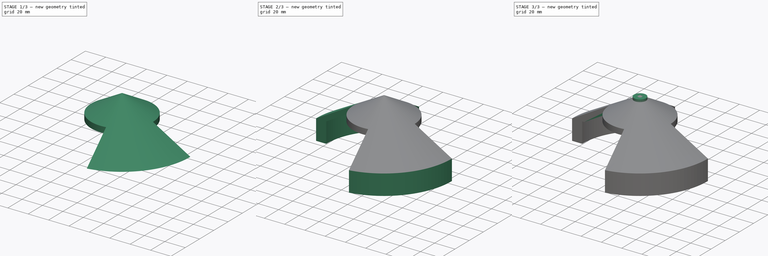
[diagram: build sequence overview — one tinted view per stage of 3, left to right]
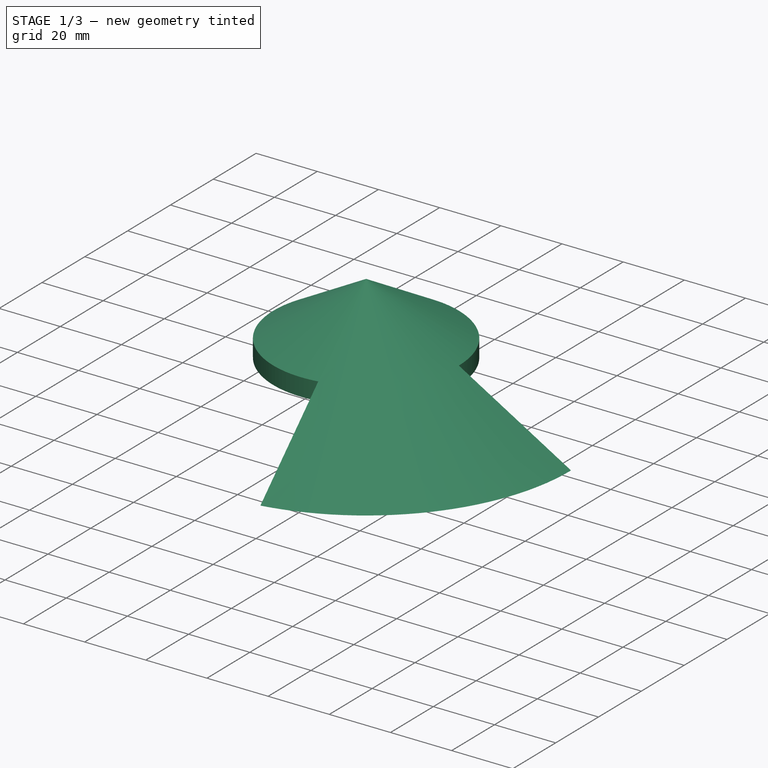
[diagram: stage 1 of 3 — iso view after this stage's code; geometry added in this stage tinted green]
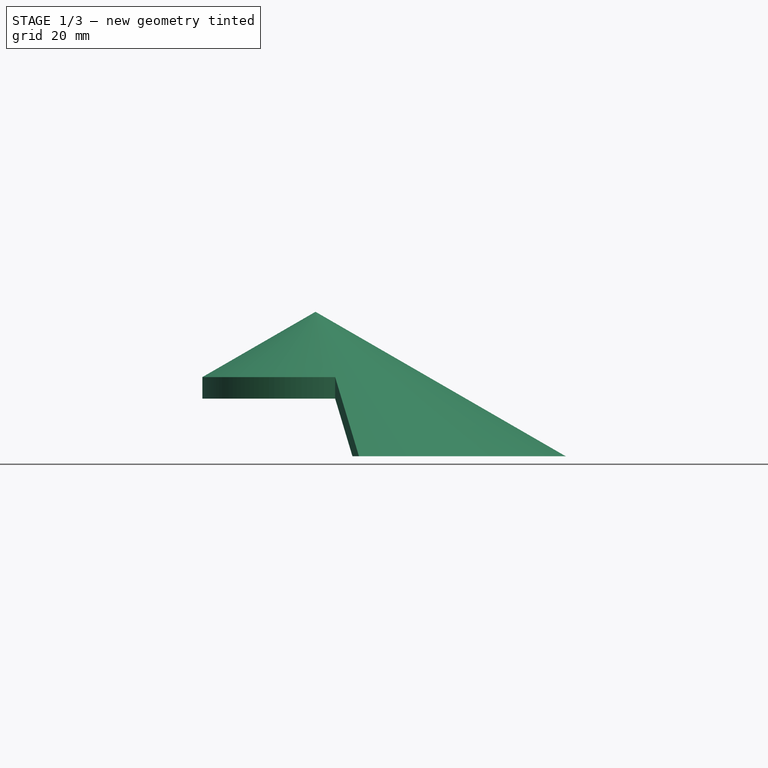
[diagram: stage 1 of 3 — front view after this stage's code; geometry added in this stage tinted green]
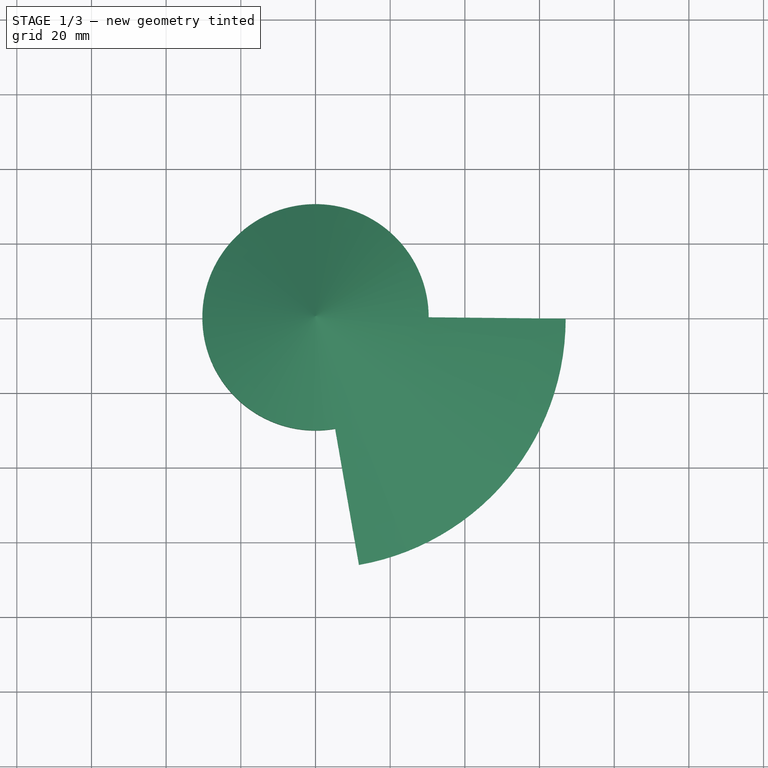
[diagram: stage 1 of 3 — top view after this stage's code; geometry added in this stage tinted green]
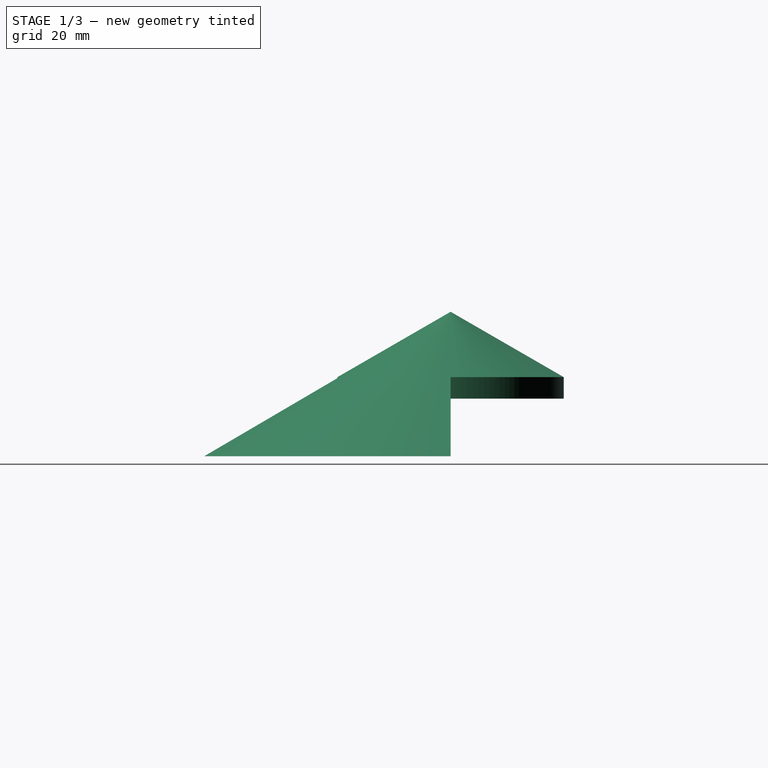
[diagram: stage 1 of 3 — right view after this stage's code; geometry added in this stage tinted green]
FCSTD DOCUMENT  (FreeCAD 1.1R39757 (Git))
Label: Чехол для бура
License: All rights reserved
LicenseURL: https://en.wikipedia.org/wiki/All_rights_reserved
objects: Sketcher::SketchObject×4, PartDesign::Revolution×2, PartDesign::PolarPattern×2, PartDesign::Pad×2, PartDesign::SubShapeBinder×1, App::Point×1, PartDesign::Pocket×1, PartDesign::Body×1, Measure::MeasureLength×1, App::DocumentObjectGroup×1
note: 29 computed .brp shape members not serialized (recipe doc carries the construction recipe); baked Part::Feature solids carry a one-line shape summary decoded from their .brp

FEATURE [PartDesign::SubShapeBinder] Binder
  BindCopyOnChange = 0
  BindMode = 0
  ClaimChildren = false
  Context = -> Body [Binder.]
  Fuse = false
  MakeFace = true
  OffsetFill = false
  OffsetIntersection = false
  OffsetJoinType = 0
  OffsetOpenResult = false
  PartialLoad = false
  Refine = true
  Relative = true
  Support = -> [PolarPattern[Face1,Face18]]
  _Version = 2
FEATURE [App::Point] Origin001
  Role = Origin
FEATURE [Sketcher::SketchObject] Sketch
  ArcFitTolerance = 1e-06
  AttachmentSupport = -> [XZ_Plane]
  ExternalTypes = [0]
  FullyConstrained = false
  MakeInternals = false
  MapMode = 5
  Placement = pos=(0,0,0) rot=(1,0,0;1.5708rad)
  sketch-geometry (5):
    g0: LineSegment StartX=57 StartY=0 StartZ=0 EndX=67 EndY=0 EndZ=0
    g1: LineSegment StartX=0 StartY=32.909 StartZ=0 EndX=57 EndY=0 EndZ=0
    g2: LineSegment StartX=67 StartY=0 StartZ=0 EndX=0 EndY=38.6825 EndZ=0
    g3: LineSegment [constr] StartX=67 StartY=0 StartZ=0 EndX=67 EndY=-59.0907 EndZ=0
    g4: LineSegment StartX=0 StartY=32.909 StartZ=0 EndX=0 EndY=38.6825 EndZ=0
  constraints (15):
    c: PointOnObject(g0,g-1)
    c: PointOnObject(g0,g-1)
    c: Coincident(g1,g0)
    c: Coincident(g0,g2)
    c: Coincident(g3,g0)
    c: Vertical(g3)
    c: Angle(g2,g3) = 2.0944
    c: Parallel(g1,g2)
    c: DistanceX(g-1,g0) = 57
    c: Distance(g2,g1) = 5
    c: Coincident(g4,g1)
    c: Coincident(g4,g2)
    c: Vertical(g4)
    c: DistanceX(g0,g0) = 10
    c: PointOnObject(g2,g-2)
FEATURE [Sketcher::SketchObject] Sketch001
  ArcFitTolerance = 1e-06
  AttachmentSupport = -> [XZ_Plane]
  ExternalGeometry = -> [Sketch]
  ExternalTypes = [0,0,0]
  FullyConstrained = true
  MakeInternals = false
  MapMode = 5
  Placement = pos=(0,0,0) rot=(1,0,0;1.5708rad)
  sketch-geometry (3):
    g0: LineSegment StartX=0 StartY=32.909 StartZ=0 EndX=30.3109 EndY=15.409 EndZ=0
    g1: LineSegment StartX=30.3109 StartY=15.409 StartZ=0 EndX=30.3109 EndY=21.1825 EndZ=0
    g2: LineSegment StartX=30.3109 StartY=21.1825 StartZ=0 EndX=0 EndY=38.6825 EndZ=0
  constraints (8):
    c: Coincident(g-3,g0)
    c: Coincident(g0,g1)
    c: Vertical(g1)
    c: Coincident(g1,g2)
    c: Coincident(g2,g-3)
    c: PointOnObject(g1,g-4)
    c: PointOnObject(g0,g-5)
    c: Distance(g2,g2) = 35
FEATURE [PartDesign::Revolution] Revolution
  Angle = 360
  Angle2 = 60
  Axis = (0,2e-16,1)
  Base = (0,0,0)
  Midplane = true
  Placement = pos=(0,0,0) rot=(1,0,0;1.5708rad)
  Profile = -> Sketch001
  ReferenceAxis = -> Sketch001 [V_Axis]
  Refine = true
  Suppressed = false
  Type = 0
FEATURE [PartDesign::Revolution] Revolution001
  Angle = 80
  Angle2 = 60
  Axis = (0,2e-16,1)
  Base = (0,0,0)
  BaseFeature = -> Revolution
  Placement = pos=(0,0,0) rot=(1,0,0;1.5708rad)
  Profile = -> Sketch
  ReferenceAxis = -> Sketch [V_Axis]
  Refine = true
  Reversed = true
  Suppressed = false
  Type = 0
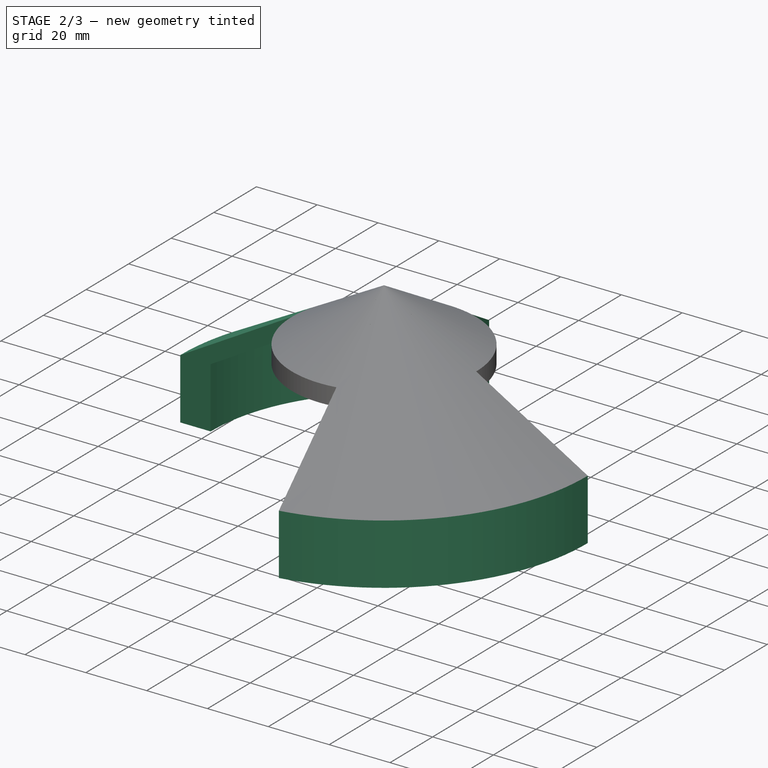
[diagram: stage 2 of 3 — iso view after this stage's code; geometry added in this stage tinted green]
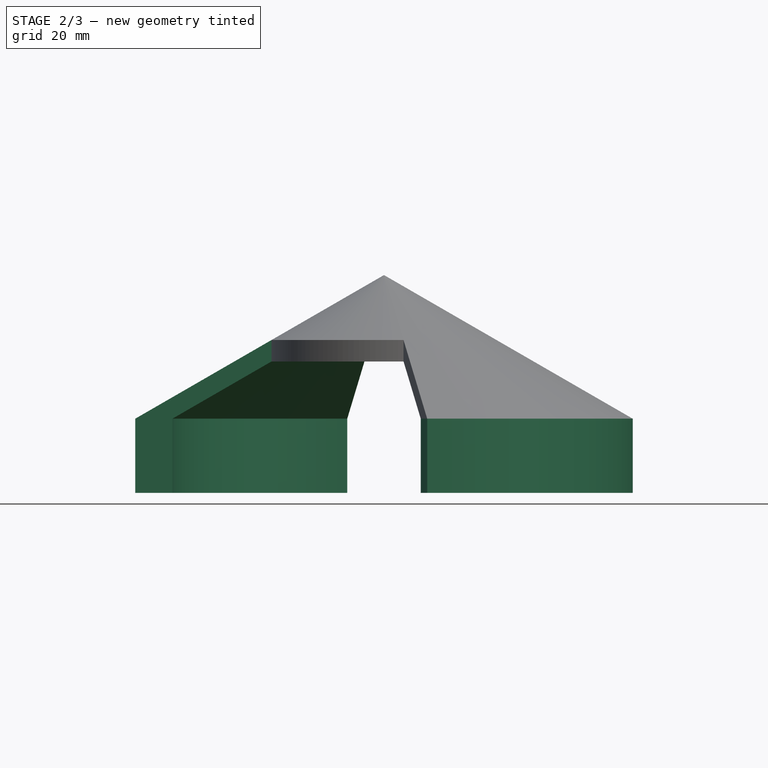
[diagram: stage 2 of 3 — front view after this stage's code; geometry added in this stage tinted green]
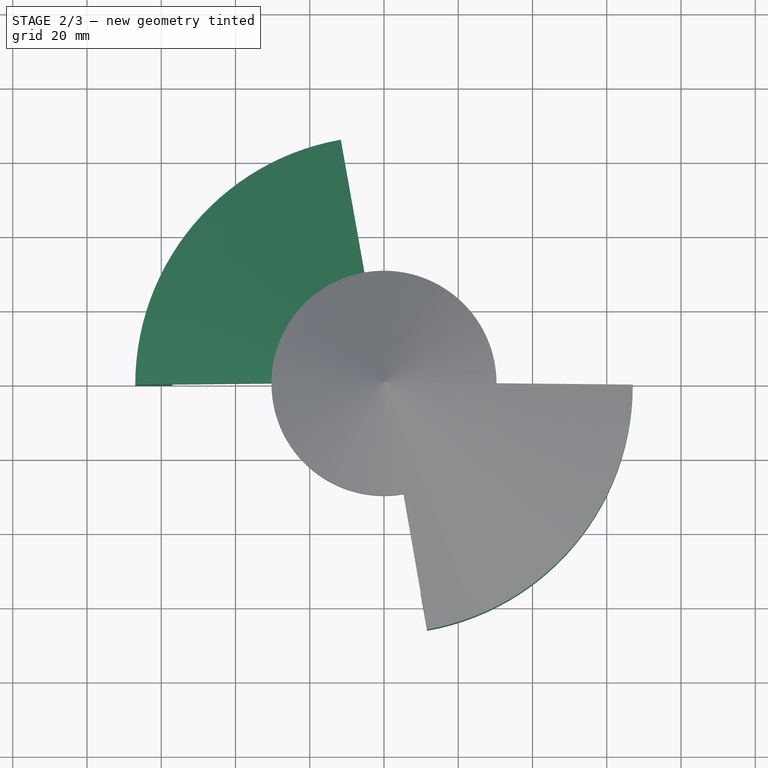
[diagram: stage 2 of 3 — top view after this stage's code; geometry added in this stage tinted green]
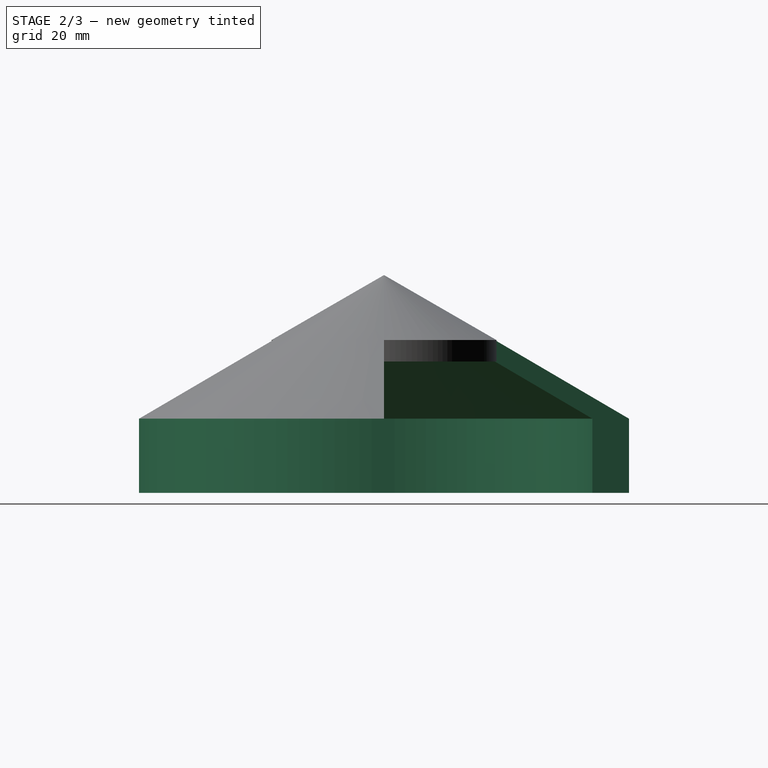
[diagram: stage 2 of 3 — right view after this stage's code; geometry added in this stage tinted green]
FEATURE [PartDesign::PolarPattern] PolarPattern
  Angle = 360
  Axis = -> Y_Axis
  BaseFeature = -> Revolution001
  Mode = 0
  Occurrences = 2
  Offset = 120
  Originals = -> [Revolution001]
  Placement = pos=(0,0,0) rot=(1,0,0;1.5708rad)
  Refine = true
  Suppressed = false
  TransformMode = 0
FEATURE [PartDesign::Pad] Pad
  BaseFeature = -> PolarPattern
  Direction = (0,-2e-16,-1)
  Length = 20
  Length2 = 10
  Placement = pos=(0,0,0) rot=(1,0,0;1.5708rad)
  Profile = -> PolarPattern [Face1,Face18]
  Refine = true
  Suppressed = false
  Type = 0
FEATURE [Sketcher::SketchObject] Sketch002
  ArcFitTolerance = 1e-06
  AttachmentOffset = pos=(0,0,0) rot=(0,-1,0;0.785398rad)
  AttachmentSupport = -> [XZ_Plane]
  ExternalGeometry = -> [Pad]
  ExternalTypes = [0]
  FullyConstrained = true
  MakeInternals = false
  MapMode = 5
  Placement = pos=(0,0,0) rot=(0.862856,-0.357407,-0.357407;1.71777rad)
  sketch-geometry (3):
    g0: LineSegment StartX=-67 StartY=-20 StartZ=0 EndX=-72 EndY=-12.8593 EndZ=0
    g1: LineSegment StartX=-72 StartY=-12.8593 StartZ=0 EndX=-67 EndY=-12.8593 EndZ=0
    g2: LineSegment StartX=-67 StartY=-20 StartZ=0 EndX=-67 EndY=-12.8593 EndZ=0
  constraints (9):
    c: PointOnObject(g0,g-3)
    c: Coincident(g0,g1)
    c: Coincident(g0,g2)
    c: Coincident(g2,g1)
    c: Vertical(g2)
    c: DistanceX(g0,g-3) = 5
    c: Horizontal(g1)
    c: Angle(g0,g1) = 0.959931
    c: DistanceX(g1,g1) = 5
FEATURE [PartDesign::Pad] Pad001
  BaseFeature = -> Pad
  Direction = (-0.707107,-0.707107,1e-16)
  Length = 4
  Length2 = 4
  Placement = pos=(0,0,0) rot=(1,0,0;1.5708rad)
  Profile = -> Sketch002
  ReferenceAxis = -> Sketch002 [N_Axis]
  Refine = true
  Suppressed = false
  Type = 4
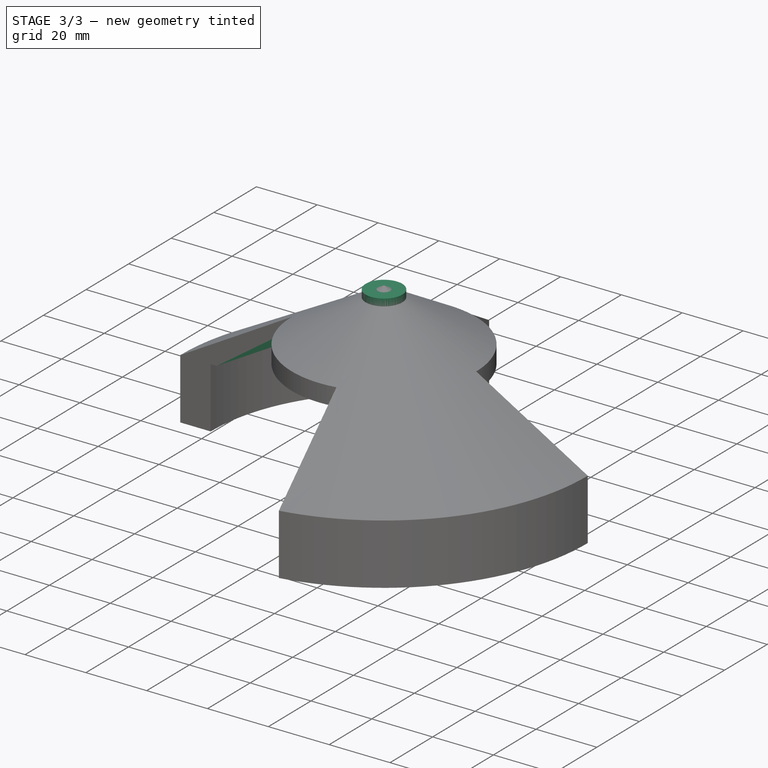
[diagram: stage 3 of 3 — iso view after this stage's code; geometry added in this stage tinted green]
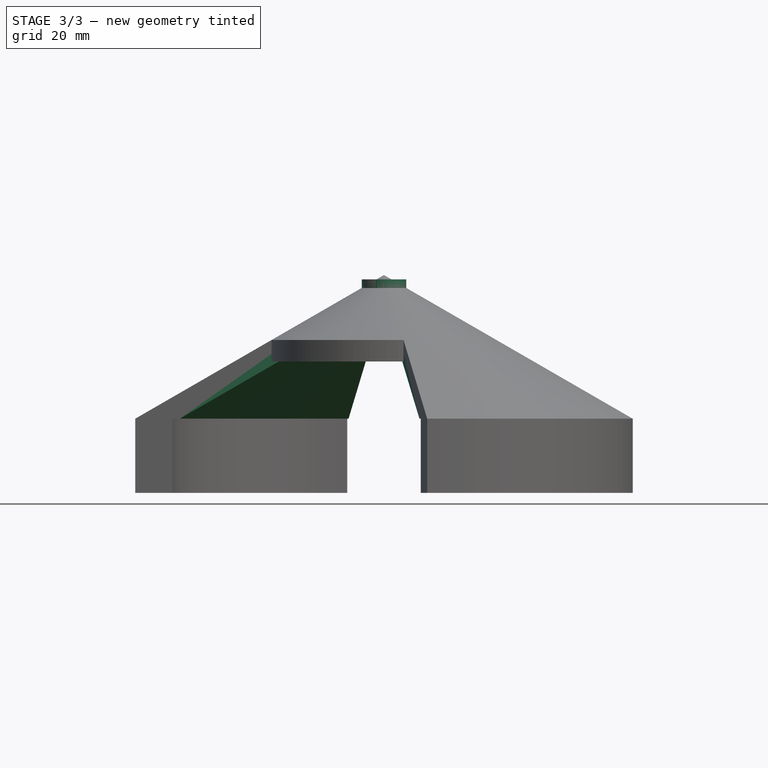
[diagram: stage 3 of 3 — front view after this stage's code; geometry added in this stage tinted green]
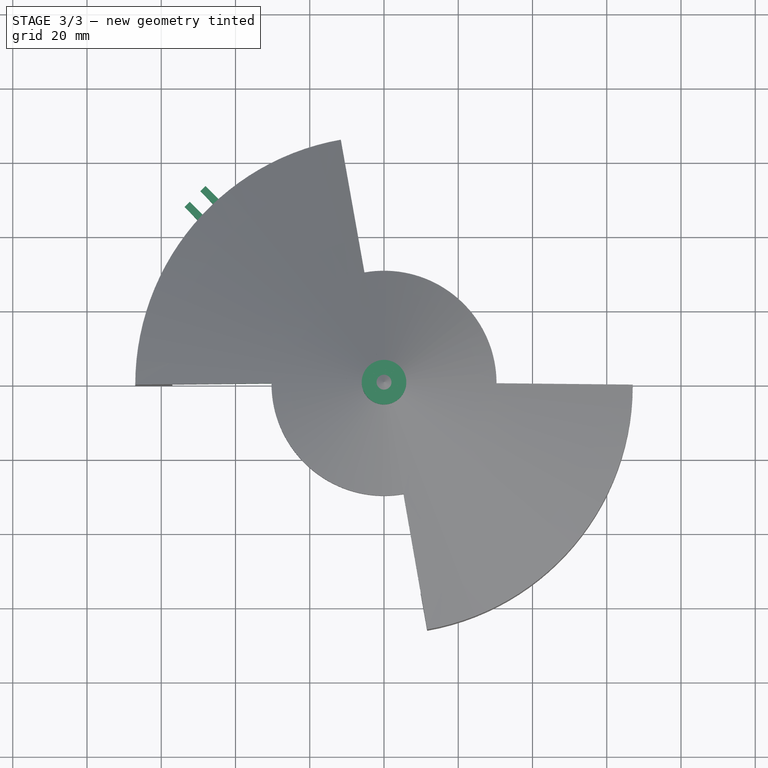
[diagram: stage 3 of 3 — top view after this stage's code; geometry added in this stage tinted green]
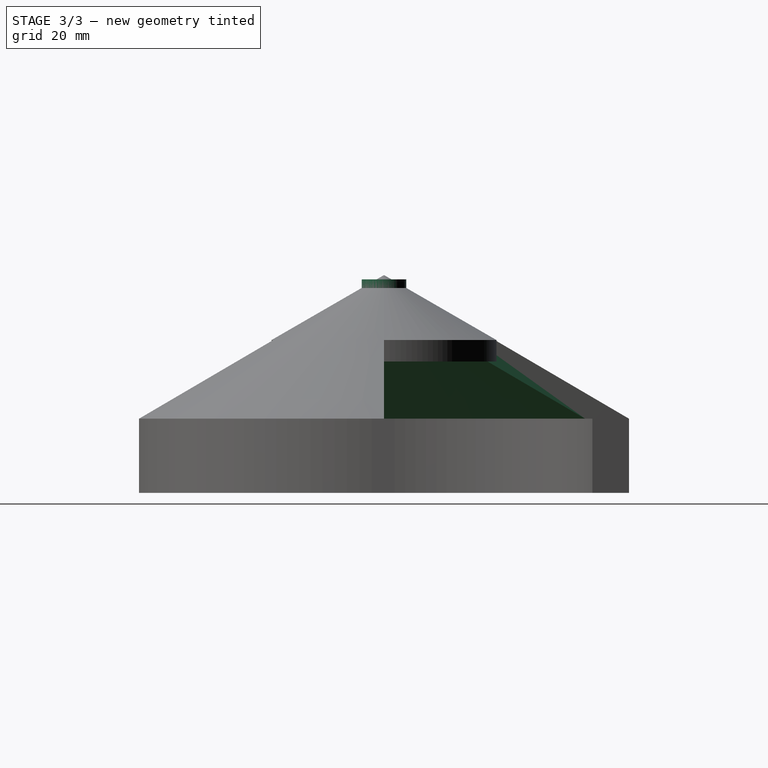
[diagram: stage 3 of 3 — right view after this stage's code; geometry added in this stage tinted green]
FEATURE [PartDesign::PolarPattern] PolarPattern001
  Angle = 360
  Axis = -> Y_Axis
  BaseFeature = -> PolarPattern
  Mode = 0
  Occurrences = 2
  Offset = 120
  Placement = pos=(0,0,0) rot=(1,0,0;1.5708rad)
  Refine = true
  Suppressed = false
  TransformMode = 0
FEATURE [Sketcher::SketchObject] Sketch003
  ArcFitTolerance = 1e-06
  AttachmentSupport = -> [Pad001]
  ExternalGeometry = -> [Pad001]
  ExternalTypes = [0,0,0]
  FullyConstrained = false
  MakeInternals = false
  MapMode = 5
  Placement = pos=(4.4e-15,8.9e-15,-20) rot=(1,0,0;3.14159rad)
  sketch-geometry (7):
    g0: LineSegment StartX=-53.6294 StartY=-50.8009 StartZ=0 EndX=-48.7693 EndY=-45.9408 EndZ=0
    g1: LineSegment StartX=-51.7256 StartY=-54.554 StartZ=0 EndX=-45.9408 EndY=-48.7693 EndZ=0
    g2: ArcOfCircle CenterX=0 CenterY=0 CenterZ=0 NormalX=0 NormalY=0 NormalZ=1 AngleXU=0 Radius=67 StartAngle=3.89714 EndAngle=3.95685
    g3: LineSegment [constr] StartX=-51.9301 StartY=-46.2732 StartZ=0 EndX=-50.5159 EndY=-47.6875 EndZ=0
    g4: LineSegment [constr] StartX=-46.2732 StartY=-51.9301 StartZ=0 EndX=-47.6875 EndY=-50.5159 EndZ=0
    g5: LineSegment [constr] StartX=-51.9301 StartY=-46.2732 StartZ=0 EndX=-46.2732 EndY=-51.9301 EndZ=0
    g6: LineSegment StartX=-51.7256 StartY=-54.554 StartZ=0 EndX=-53.6294 EndY=-50.8009 EndZ=0
  constraints (18):
    c: Parallel(g0,g-4)
    c: Parallel(g-5,g1)
    c: Coincident(g2,g-1)
    c: Coincident(g2,g0)
    c: Coincident(g2,g1)
    c: Equal(g2,g-3)
    c: Symmetric(g-4,g-4,g3)
    c: Symmetric(g-5,g-5,g4)
    c: PointOnObject(g4,g1)
    c: Equal(g4,g3)
    c: Parallel(g4,g3)
    c: Coincident(g5,g3)
    c: Coincident(g5,g4)
    c: PointOnObject(g3,g5)
    c: PointOnObject(g3,g0)
    c: Distance(g3,g3) = 2
    c: Coincident(g6,g1)
    c: Coincident(g6,g0)
FEATURE [PartDesign::Pocket] Pocket
  BaseFeature = -> Pad001
  Direction = (0,0,1)
  Length = 16
  Length2 = 5
  Placement = pos=(0,0,0) rot=(1,0,0;1.5708rad)
  Profile = -> Sketch003
  ReferenceAxis = -> Sketch003 [N_Axis]
  Refine = true
  Suppressed = false
  Type = 0
FEATURE [PartDesign::Body] Body  label="Тело"
  AllowCompound = false
  Group = -> [Sketch,Sketch001,Revolution,Revolution001,PolarPattern,PolarPattern001,Binder,Pad,Sketch002,Pad001,Sketch003,Pocket]
  Origin = -> Origin
  Tip = -> Pocket
FEATURE [Measure::MeasureLength] Length  label="Length: 5,12 mm"
  Elements = -> [Body]
  Length = 5.11951
FEATURE [App::DocumentObjectGroup] Measurements
  Group = -> [Length]
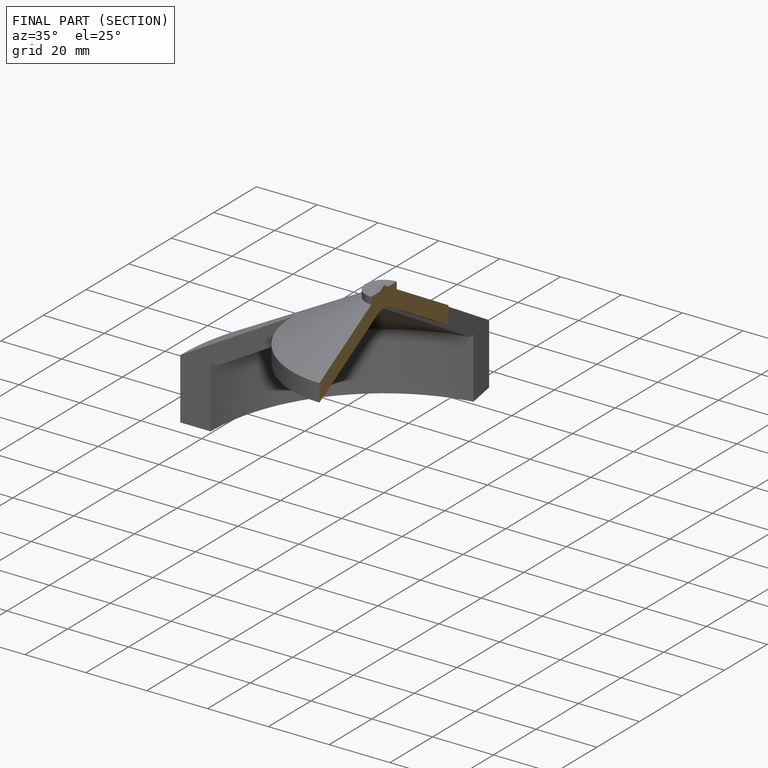
[diagram: finished part — half-section view (interior)]
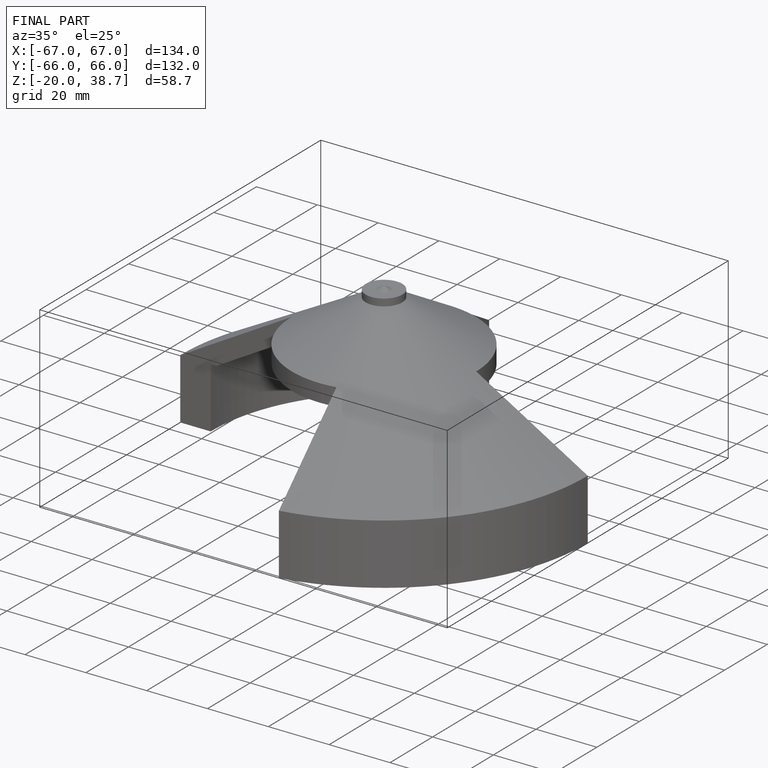
[diagram: finished part — iso view with bounding-box wireframe]
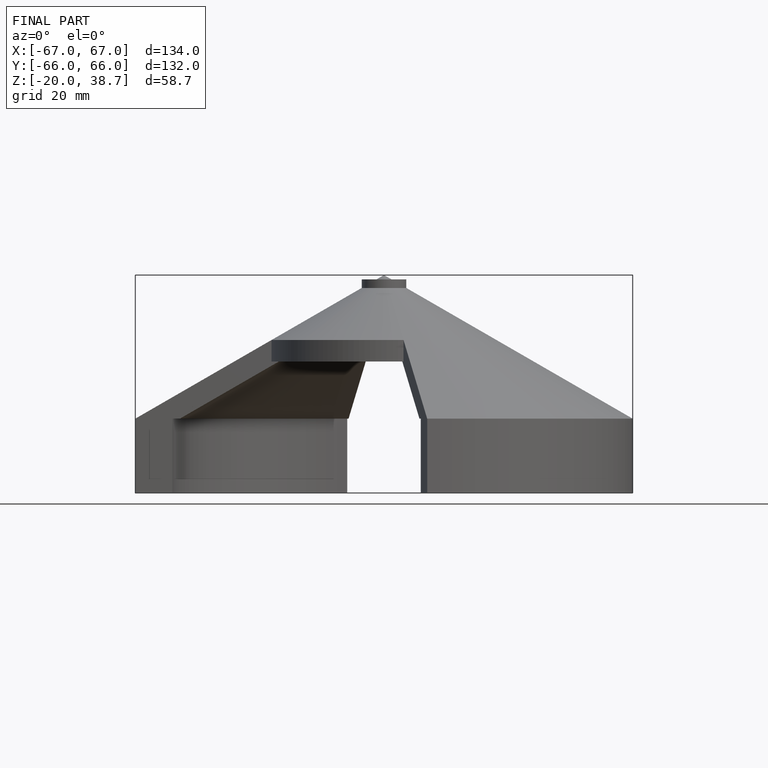
[diagram: finished part — front view with bounding-box wireframe]
